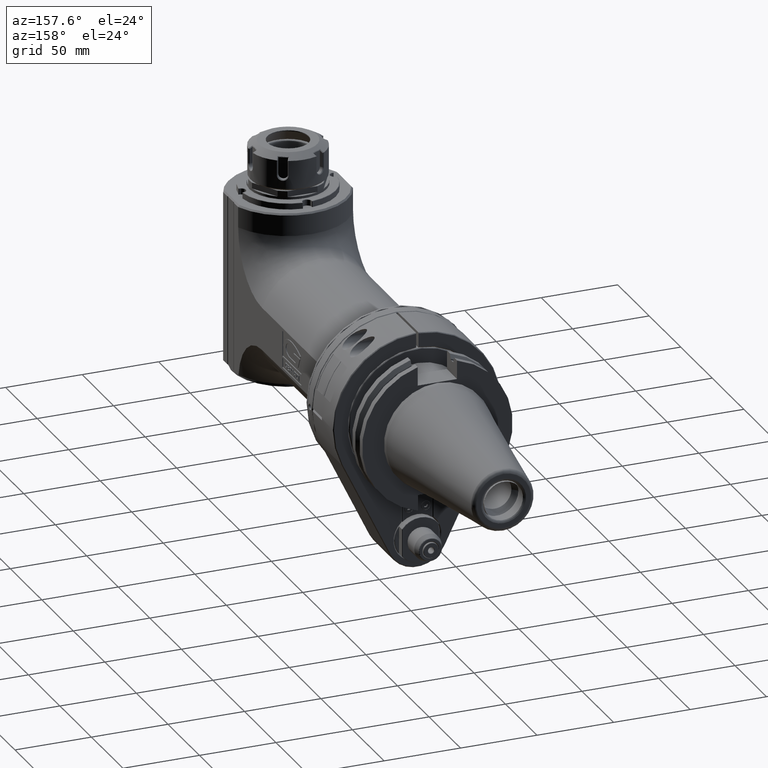
[diagram: clean part render]
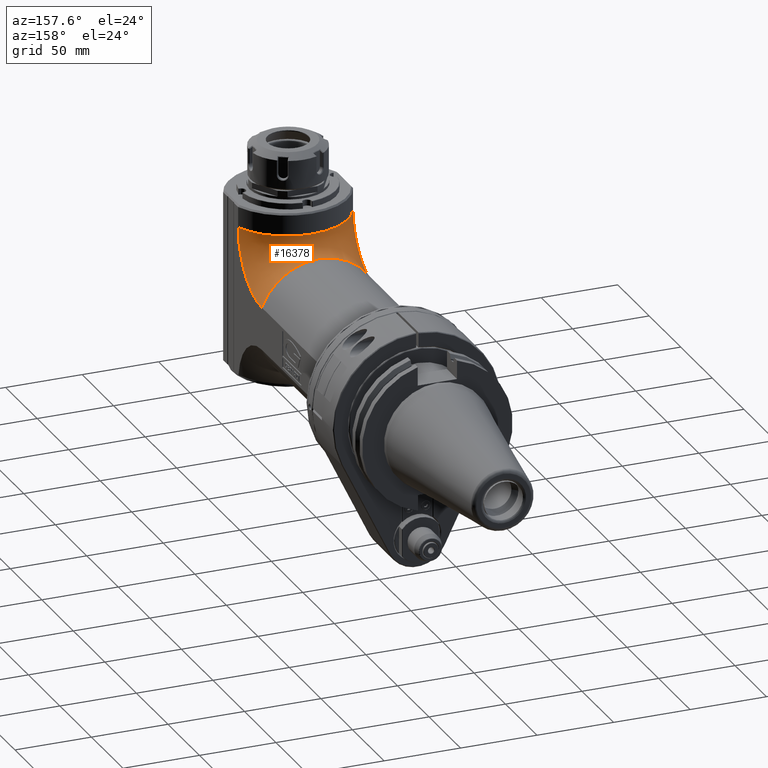
[diagram: same view with one face highlighted and labeled with its STEP entity id]
A machine part, auxiliary view. The second image highlights one B-rep face of the part: STEP entity #16378.
In plain terms, the highlighted toroidal blend (fillet) surface has major radius 51.5 mm and minor (blend) radius 40 mm.
Its self-contained STEP definition (entity closure, byte-faithful):
#126=TOROIDAL_SURFACE('',#17920,51.5,40.);
#1182=CIRCLE('',#17658,37.58058909292);
#1320=CIRCLE('',#17917,37.58058909292);
#1321=CIRCLE('',#17919,40.);
#1322=CIRCLE('',#17921,40.);
#2292=FACE_OUTER_BOUND('',#3293,.T.);
#3293=EDGE_LOOP('',(#13397,#13398,#13399,#13400));
#7144=VERTEX_POINT('',#26812);
#7145=VERTEX_POINT('',#26814);
#7352=VERTEX_POINT('',#27790);
#7353=VERTEX_POINT('',#27792);
#9165=EDGE_CURVE('',#7145,#7144,#1182,.T.);
#9469=EDGE_CURVE('',#7352,#7353,#1320,.T.);
#9479=EDGE_CURVE('',#7144,#7353,#1321,.T.);
#9480=EDGE_CURVE('',#7352,#7145,#1322,.T.);
#13397=ORIENTED_EDGE('',*,*,#9469,.F.);
#13398=ORIENTED_EDGE('',*,*,#9480,.T.);
#13399=ORIENTED_EDGE('',*,*,#9165,.T.);
#13400=ORIENTED_EDGE('',*,*,#9479,.T.);
#16378=ADVANCED_FACE('',(#2292),#126,.T.);
#17658=AXIS2_PLACEMENT_3D('',#26815,#20883,#20884);
#17917=AXIS2_PLACEMENT_3D('',#27793,#21532,#21533);
#17919=AXIS2_PLACEMENT_3D('',#27812,#21545,#21546);
#17920=AXIS2_PLACEMENT_3D('',#27813,#21547,#21548);
#17921=AXIS2_PLACEMENT_3D('',#27814,#21549,#21550);
#20883=DIRECTION('center_axis',(-1.,0.,0.));
#20884=DIRECTION('ref_axis',(0.,-2.609190007438E-14,-1.));
#21532=DIRECTION('center_axis',(-1.,0.,0.));
#21533=DIRECTION('ref_axis',(0.,0.,-1.));
#21545=DIRECTION('center_axis',(0.,0.,-1.));
#21546=DIRECTION('ref_axis',(-0.937499999999992,0.347985272676897,0.));
#21547=DIRECTION('center_axis',(-1.,0.,0.));
#21548=DIRECTION('ref_axis',(0.,1.,0.));
#21549=DIRECTION('center_axis',(0.,-1.,0.));
#21550=DIRECTION('ref_axis',(0.937499999999992,0.,0.347985272676897));
#26812=CARTESIAN_POINT('',(-37.5,11.91941090708,51.5));
#26814=CARTESIAN_POINT('',(-37.5,49.5,13.91941090708));
#26815=CARTESIAN_POINT('Origin',(-37.5,49.5,51.5));
#27790=CARTESIAN_POINT('',(37.5,49.5,13.91941090708));
#27792=CARTESIAN_POINT('',(37.5,11.91941090708,51.5));
#27793=CARTESIAN_POINT('Origin',(37.5,49.5,51.5));
#27812=CARTESIAN_POINT('Origin',(0.,-2.,51.5));
#27813=CARTESIAN_POINT('Origin',(0.,49.5,51.5));
#27814=CARTESIAN_POINT('Origin',(0.,49.5,0.));